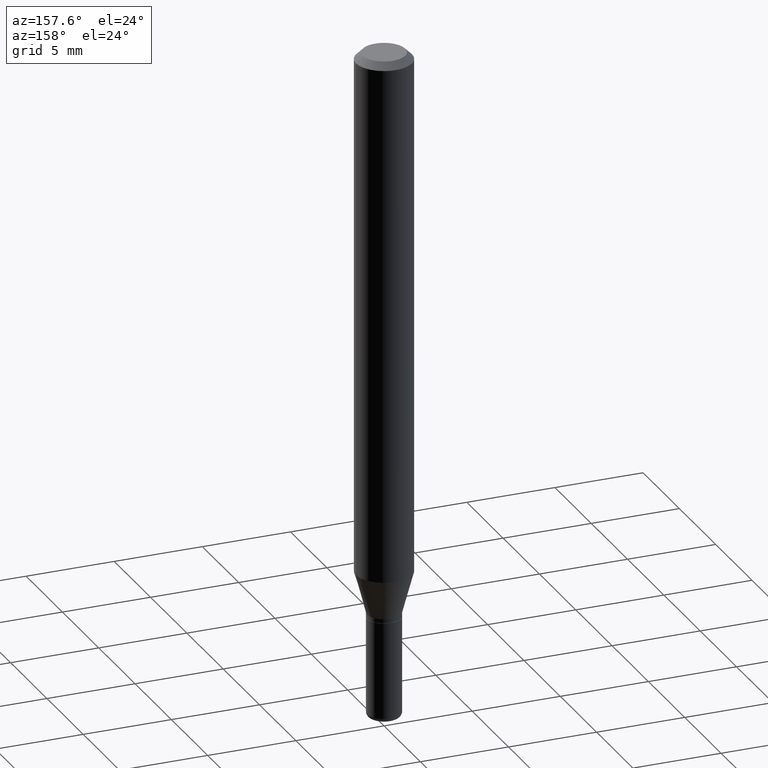
[diagram: clean part render]
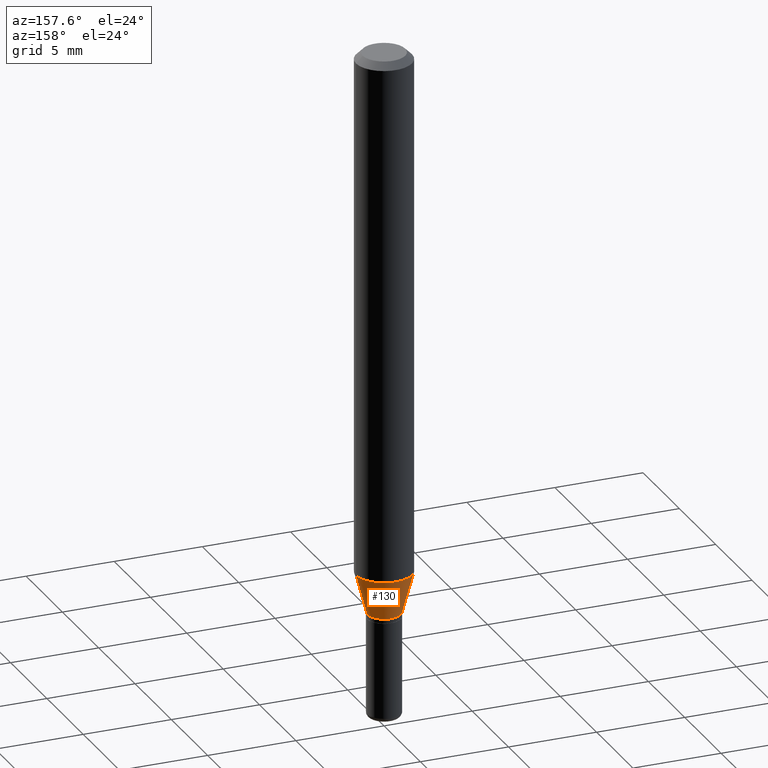
[diagram: same view with one face highlighted and labeled with its STEP entity id]
A machine part, auxiliary view. The second image highlights one B-rep face of the part: STEP entity #130.
In plain terms, the highlighted conical surface has half-angle 15 deg.
Its self-contained STEP definition (entity closure, byte-faithful):
#2 = LINE ( 'NONE', #164, #67 ) ;
#17 = CONICAL_SURFACE ( 'NONE', #308, 0.03749999999999995698, 0.2617993877991495189 ) ;
#28 = FACE_OUTER_BOUND ( 'NONE', #278, .T. ) ;
#44 = CIRCLE ( 'NONE', #387, 0.03749999999999995698 ) ;
#52 = EDGE_CURVE ( 'NONE', #349, #511, #247, .T. ) ;
#53 = ORIENTED_EDGE ( 'NONE', *, *, #52, .T. ) ;
#54 = DIRECTION ( 'NONE',  ( -2.445468806185136597E-29, 3.491481338843145583E-15, 1.000000000000000000 ) ) ;
#67 = VECTOR ( 'NONE', #320, 39.37007874015748854 ) ;
#113 = DIRECTION ( 'NONE',  ( -2.445468806185136597E-29, 3.491481338843145583E-15, 1.000000000000000000 ) ) ;
#130 = ADVANCED_FACE ( 'NONE', ( #28 ), #17, .T. ) ;
#153 = DIRECTION ( 'NONE',  ( 1.000000000000000000, -6.982962677686276177E-15, 0.000000000000000000 ) ) ;
#164 = CARTESIAN_POINT ( 'NONE',  ( 0.03749999999999995698, -4.678584994049814158E-15, -1.265000000000000124 ) ) ;
#165 = EDGE_CURVE ( 'NONE', #473, #410, #2, .T. ) ;
#166 = DIRECTION ( 'NONE',  ( 1.000000000000000000, -6.982962677686262766E-15, 0.000000000000000000 ) ) ;
#201 = ORIENTED_EDGE ( 'NONE', *, *, #165, .F. ) ;
#213 = EDGE_CURVE ( 'NONE', #410, #511, #339, .T. ) ;
#247 = LINE ( 'NONE', #446, #338 ) ;
#256 = CARTESIAN_POINT ( 'NONE',  ( 3.093518039824198064E-29, -4.416723893636579156E-15, -1.265000000000000124 ) ) ;
#260 = CARTESIAN_POINT ( 'NONE',  ( -0.06250000000000000000, -3.646875040030485445E-15, -1.171698729810777939 ) ) ;
#278 = EDGE_LOOP ( 'NONE', ( #481, #53, #326, #201 ) ) ;
#308 = AXIS2_PLACEMENT_3D ( 'NONE', #469, #347, #153 ) ;
#320 = DIRECTION ( 'NONE',  ( 0.2588190451025207950, 1.565188264969625912E-15, 0.9659258262890682012 ) ) ;
#326 = ORIENTED_EDGE ( 'NONE', *, *, #213, .F. ) ;
#338 = VECTOR ( 'NONE', #366, 39.37007874015748854 ) ;
#339 = CIRCLE ( 'NONE', #359, 0.06250000000000000000 ) ;
#347 = DIRECTION ( 'NONE',  ( -2.445468806185136597E-29, 3.491481338843145583E-15, 1.000000000000000000 ) ) ;
#349 = VERTEX_POINT ( 'NONE', #356 ) ;
#356 = CARTESIAN_POINT ( 'NONE',  ( -0.03749999999999995698, -3.898572703878513594E-15, -1.265000000000000124 ) ) ;
#359 = AXIS2_PLACEMENT_3D ( 'NONE', #518, #113, #166 ) ;
#366 = DIRECTION ( 'NONE',  ( -0.2588190451025207950, 5.211531920934546309E-15, 0.9659258262890682012 ) ) ;
#373 = EDGE_CURVE ( 'NONE', #473, #349, #44, .T. ) ;
#378 = CARTESIAN_POINT ( 'NONE',  ( 0.06250000000000000000, -4.527399417235938941E-15, -1.171698729810777939 ) ) ;
#387 = AXIS2_PLACEMENT_3D ( 'NONE', #256, #54, #458 ) ;
#410 = VERTEX_POINT ( 'NONE', #378 ) ;
#446 = CARTESIAN_POINT ( 'NONE',  ( -0.03749999999999995698, -4.150270367726541744E-15, -1.265000000000000124 ) ) ;
#455 = CARTESIAN_POINT ( 'NONE',  ( 0.03749999999999995698, -4.678584994049814158E-15, -1.265000000000000124 ) ) ;
#458 = DIRECTION ( 'NONE',  ( 1.000000000000000000, -6.982962677686276177E-15, 0.000000000000000000 ) ) ;
#469 = CARTESIAN_POINT ( 'NONE',  ( 3.093518039824198064E-29, -4.416723893636579156E-15, -1.265000000000000124 ) ) ;
#473 = VERTEX_POINT ( 'NONE', #455 ) ;
#481 = ORIENTED_EDGE ( 'NONE', *, *, #373, .T. ) ;
#511 = VERTEX_POINT ( 'NONE', #260 ) ;
#518 = CARTESIAN_POINT ( 'NONE',  ( 2.865352693999004031E-29, -4.090964249880548061E-15, -1.171698729810777939 ) ) ;